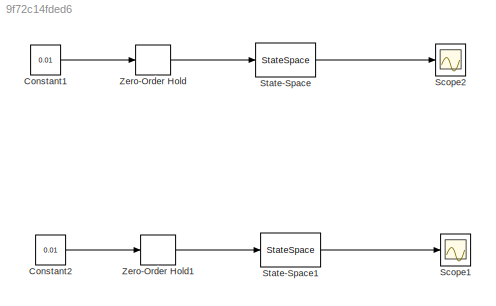
MODEL slx_9f72c14fded6
KIND model
CONFIG AbsTol = auto
CONFIG EnableMultiTasking = off
CONFIG FixedStep = .001
CONFIG MaxStep = auto
CONFIG MinStep = auto
CONFIG RelTol = 1e-3
CONFIG SampleTimeConstraint = Unconstrained
CONFIG Solver = FixedStepAuto
CONFIG SolverName = FixedStepAuto
CONFIG StartTime = 0.0
CONFIG StopTime = 1
BLOCK [Constant] Constant1
  AttributesFormatString = Simulation Model \nInput-Constant\nSample time 0.005
  Description = Simulation Model Input
  SampleTime = .005
  Value = 0.01
BLOCK [Constant] Constant2
  AttributesFormatString = Simulation Model \nInput-Constant\nSample time 0.03
  Description = Simulation Model Input
  SampleTime = .03
  Value = 0.01
BLOCK [Scope] Scope1
  AttributesFormatString = Output ZOH \nconstant Input
  Description = Output for constant Input
  NumInputPorts = 1
  Ports = [1]
  ScopeSpecificationString = Simulink.scopes.TimeScopeBlockCfg('CurrentConfiguration', extmgr.ConfigurationSet(extmgr.Configuration('Core','General UI',true),extmgr.Configuration('Core','Source UI',true),extmgr.Configuration('Sources','WiredSimulink',true,'DataLoggingVariableName','ScopeData1'),extmgr.Configuration('Visuals','Time Domain',true,'SerializedDisplays',{struct('MinYLimReal','-49.52718','MaxYLimReal','137.62228','Y...<+1427ch>
BLOCK [Scope] Scope2
  AttributesFormatString = Output ZOH \nconstant Input
  Description = Output for constant Input
  NumInputPorts = 1
  Ports = [1]
  ScopeSpecificationString = Simulink.scopes.TimeScopeBlockCfg('CurrentConfiguration', extmgr.ConfigurationSet(extmgr.Configuration('Core','General UI',true),extmgr.Configuration('Core','Source UI',true),extmgr.Configuration('Sources','WiredSimulink',true,'DataLoggingVariableName','ScopeData2'),extmgr.Configuration('Visuals','Time Domain',true,'SerializedDisplays',{struct('MinYLimReal','-49.52718','MaxYLimReal','137.62228','Y...<+1425ch>
BLOCK [StateSpace] State-Space
  A = [ 0, 1.0000, 0, 0; 0, -0.6698, -477.3945, 0; 0, 0, 0, 1.0000;\n0, 0.1477,  122.6790, 0]
  AttributesFormatString = State space representation of Ballbot\nConstant Input
  B = [0;\n69.7518;\n0;\n-15.2579]
  C = [1, 0, 0, 0; 0, 0, 1, 0]
  D = [0; 0]
  Description = State space representation of Ballbot\nConstant Input
  Ports = [1, 1]
  Tag = Ballbot
  X0 = 0
BLOCK [StateSpace] State-Space1
  A = [ 0, 1.0000, 0, 0; 0, -0.6698, -477.3945, 0; 0, 0, 0, 1.0000;\n0, 0.1477,  122.6790, 0]
  AttributesFormatString = State space representation of Ballbot\nConstant Input
  B = [0;\n69.7518;\n0;\n-15.2579]
  C = [1, 0, 0, 0; 0, 0, 1, 0]
  D = [0; 0]
  Description = State space representation of Ballbot\nConstant Input
  Ports = [1, 1]
  Tag = Ballbot
  X0 = 0
BLOCK [ZeroOrderHold] Zero-Order Hold
  SampleTime = .005
BLOCK [ZeroOrderHold] Zero-Order Hold1
  SampleTime = .03
LINE Constant1:1 -> Zero-Order Hold:1
LINE Constant2:1 -> Zero-Order Hold1:1
LINE State-Space1:1 -> Scope1:1
LINE State-Space:1 -> Scope2:1
LINE Zero-Order Hold1:1 -> State-Space1:1
LINE Zero-Order Hold:1 -> State-Space:1
